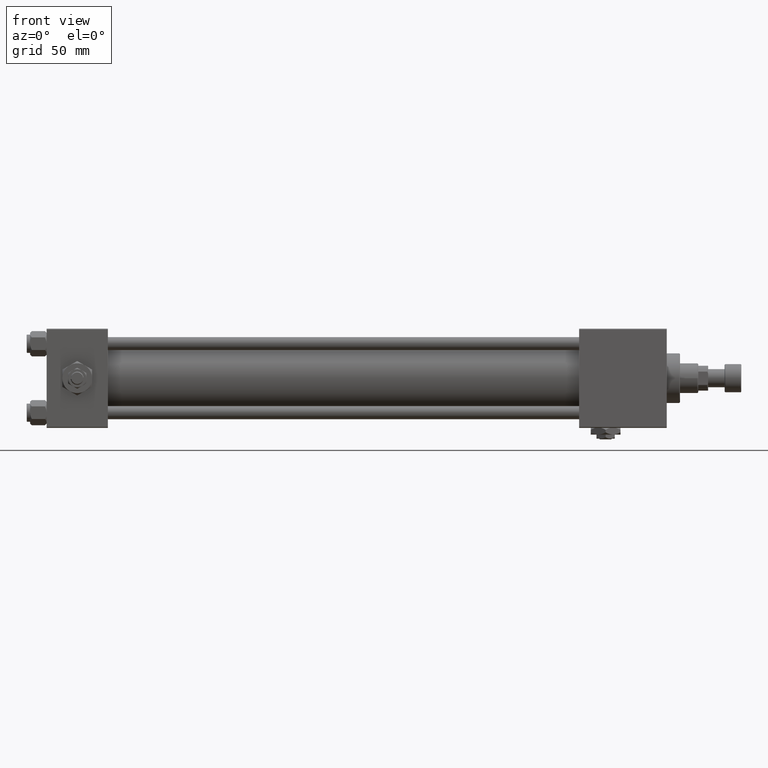
[diagram: clean part render]
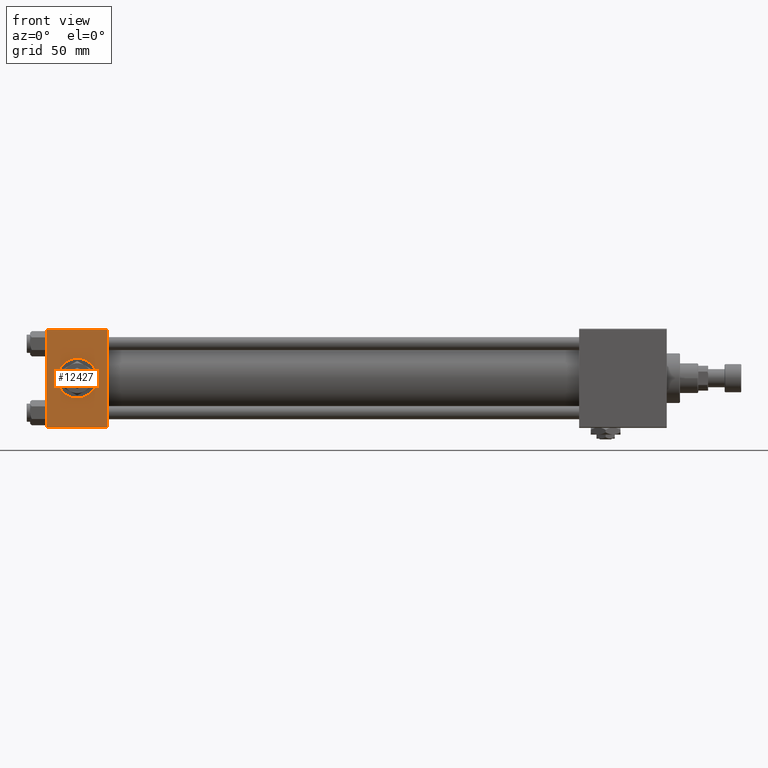
[diagram: same view with one face highlighted and labeled with its STEP entity id]
A machine part, front view. The second image highlights one B-rep face of the part: STEP entity #12427.
In plain terms, the highlighted planar face has unit normal (0, 1, 0).
Its self-contained STEP definition (entity closure, byte-faithful):
#266 = CIRCLE ( 'NONE', #8758, 12.00000000000000178 ) ;
#364 = DIRECTION ( 'NONE',  ( 0.000000000000000000, -0.000000000000000000, 1.000000000000000000 ) ) ;
#2497 = DIRECTION ( 'NONE',  ( -1.000000000000000000, 0.000000000000000000, 0.000000000000000000 ) ) ;
#3060 = LINE ( 'NONE', #14806, #8952 ) ;
#3367 = EDGE_LOOP ( 'NONE', ( #49775, #3976, #39230, #43959 ) ) ;
#3976 = ORIENTED_EDGE ( 'NONE', *, *, #37332, .T. ) ;
#8758 = AXIS2_PLACEMENT_3D ( 'NONE', #47643, #39667, #19698 ) ;
#8952 = VECTOR ( 'NONE', #39794, 1000.000000000000000 ) ;
#9167 = DIRECTION ( 'NONE',  ( 0.000000000000000000, 0.000000000000000000, -1.000000000000000000 ) ) ;
#9233 = CARTESIAN_POINT ( 'NONE',  ( 0.000000000000000000, -30.00000000000000000, -29.50000000000001776 ) ) ;
#9278 = VERTEX_POINT ( 'NONE', #9233 ) ;
#9594 = EDGE_CURVE ( 'NONE', #47614, #31823, #266, .T. ) ;
#11257 = CARTESIAN_POINT ( 'NONE',  ( 37.00000000000000000, -30.00000000000000000, 29.49999999999999289 ) ) ;
#11775 = DIRECTION ( 'NONE',  ( -0.000000000000000000, 1.000000000000000000, 0.000000000000000000 ) ) ;
#12427 = ADVANCED_FACE ( 'NONE', ( #16054, #28296 ), #24829, .F. ) ;
#14806 = CARTESIAN_POINT ( 'NONE',  ( 37.00000000000000000, -30.00000000000000000, -29.50000000000001776 ) ) ;
#15847 = ORIENTED_EDGE ( 'NONE', *, *, #33397, .F. ) ;
#16054 = FACE_BOUND ( 'NONE', #32641, .T. ) ;
#17938 = CARTESIAN_POINT ( 'NONE',  ( 18.50000000000000000, -30.00000000000000000, 0.000000000000000000 ) ) ;
#18355 = DIRECTION ( 'NONE',  ( 0.000000000000000000, 0.000000000000000000, -1.000000000000000000 ) ) ;
#18734 = LINE ( 'NONE', #11257, #43809 ) ;
#19149 = CARTESIAN_POINT ( 'NONE',  ( 0.000000000000000000, -30.00000000000000000, 29.49999999999999289 ) ) ;
#19692 = VERTEX_POINT ( 'NONE', #19149 ) ;
#19698 = DIRECTION ( 'NONE',  ( 0.000000000000000000, 0.000000000000000000, -1.000000000000000000 ) ) ;
#23081 = DIRECTION ( 'NONE',  ( 0.000000000000000000, 0.000000000000000000, -1.000000000000000000 ) ) ;
#24152 = CARTESIAN_POINT ( 'NONE',  ( 18.50000000000000000, -30.00000000000000000, 12.00000000000000178 ) ) ;
#24557 = CARTESIAN_POINT ( 'NONE',  ( 37.00000000000000000, -30.00000000000000000, 29.99999999999999289 ) ) ;
#24829 = PLANE ( 'NONE',  #26710 ) ;
#26648 = AXIS2_PLACEMENT_3D ( 'NONE', #17938, #45637, #9167 ) ;
#26710 = AXIS2_PLACEMENT_3D ( 'NONE', #24557, #11775, #364 ) ;
#28296 = FACE_OUTER_BOUND ( 'NONE', #3367, .T. ) ;
#29469 = CARTESIAN_POINT ( 'NONE',  ( 37.00000000000000000, -30.00000000000000000, -29.50000000000001776 ) ) ;
#30056 = CIRCLE ( 'NONE', #26648, 12.00000000000000178 ) ;
#31805 = EDGE_CURVE ( 'NONE', #19692, #9278, #51293, .T. ) ;
#31823 = VERTEX_POINT ( 'NONE', #43056 ) ;
#32641 = EDGE_LOOP ( 'NONE', ( #15847, #45290 ) ) ;
#33397 = EDGE_CURVE ( 'NONE', #31823, #47614, #30056, .T. ) ;
#35467 = VECTOR ( 'NONE', #18355, 1000.000000000000000 ) ;
#35854 = CARTESIAN_POINT ( 'NONE',  ( 0.000000000000000000, -30.00000000000000000, 29.99999999999999289 ) ) ;
#35965 = VECTOR ( 'NONE', #23081, 1000.000000000000000 ) ;
#37332 = EDGE_CURVE ( 'NONE', #9278, #42823, #3060, .T. ) ;
#38580 = EDGE_CURVE ( 'NONE', #50298, #19692, #18734, .T. ) ;
#39230 = ORIENTED_EDGE ( 'NONE', *, *, #42353, .F. ) ;
#39667 = DIRECTION ( 'NONE',  ( 0.000000000000000000, -1.000000000000000000, -8.673617379884036705E-17 ) ) ;
#39794 = DIRECTION ( 'NONE',  ( 1.000000000000000000, 0.000000000000000000, 0.000000000000000000 ) ) ;
#42353 = EDGE_CURVE ( 'NONE', #50298, #42823, #42580, .T. ) ;
#42580 = LINE ( 'NONE', #47089, #35467 ) ;
#42823 = VERTEX_POINT ( 'NONE', #29469 ) ;
#43056 = CARTESIAN_POINT ( 'NONE',  ( 18.50000000000000000, -30.00000000000000000, -12.00000000000000178 ) ) ;
#43809 = VECTOR ( 'NONE', #2497, 1000.000000000000000 ) ;
#43959 = ORIENTED_EDGE ( 'NONE', *, *, #38580, .T. ) ;
#45290 = ORIENTED_EDGE ( 'NONE', *, *, #9594, .F. ) ;
#45637 = DIRECTION ( 'NONE',  ( 0.000000000000000000, -1.000000000000000000, -8.673617379884036705E-17 ) ) ;
#47089 = CARTESIAN_POINT ( 'NONE',  ( 37.00000000000000000, -30.00000000000000000, 29.99999999999999289 ) ) ;
#47614 = VERTEX_POINT ( 'NONE', #24152 ) ;
#47643 = CARTESIAN_POINT ( 'NONE',  ( 18.50000000000000000, -30.00000000000000000, 0.000000000000000000 ) ) ;
#49549 = CARTESIAN_POINT ( 'NONE',  ( 37.00000000000000000, -30.00000000000000000, 29.49999999999999289 ) ) ;
#49775 = ORIENTED_EDGE ( 'NONE', *, *, #31805, .T. ) ;
#50298 = VERTEX_POINT ( 'NONE', #49549 ) ;
#51293 = LINE ( 'NONE', #35854, #35965 ) ;